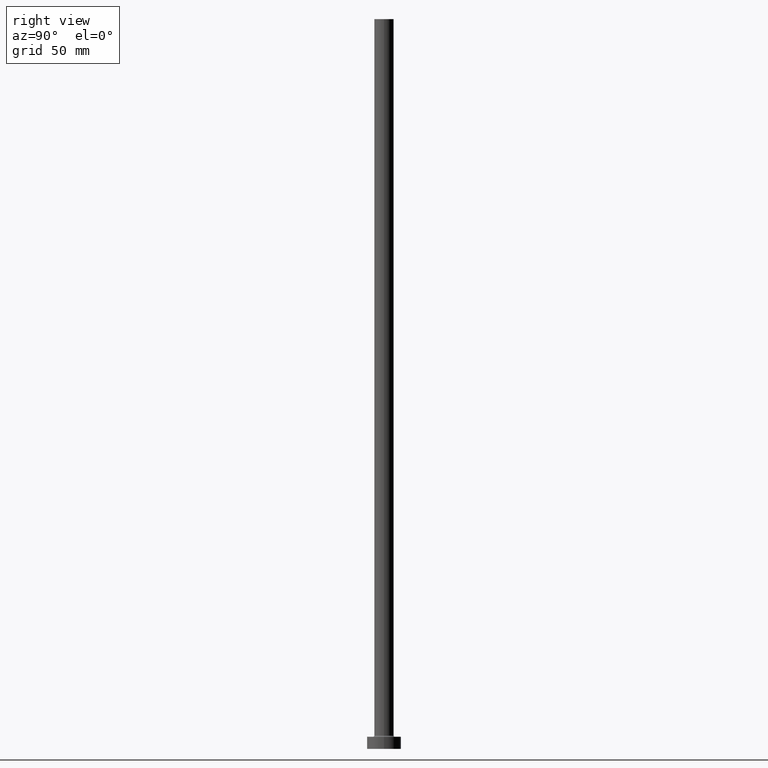
[diagram: clean part render]
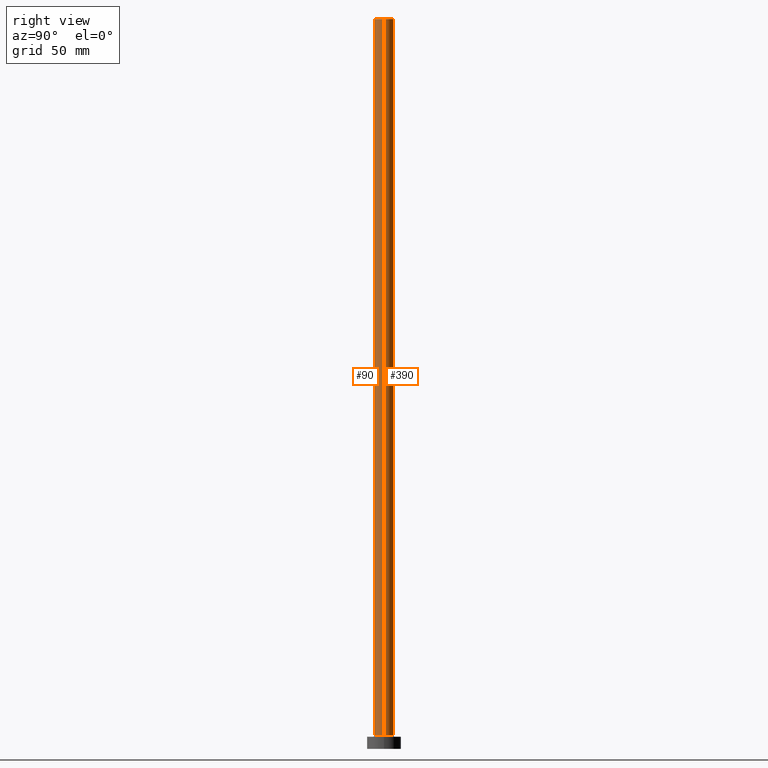
[diagram: same view with one multi-face feature highlighted, each face labeled with its STEP entity id]
A machine part, right view. The highlighted faces form ONE feature: a constant-radius fillet chain: 2 tangent blend faces with common blend radius 4 mm. The faces share edges in the B-rep.
Their STEP definitions:
[1] entity #390 (Cylinder):
#1 = CIRCLE ( 'NONE', #145, 4.000000000000000000 ) ;
#2 = AXIS2_PLACEMENT_3D ( 'NONE', #399, #84, #232 ) ;
#14 = EDGE_CURVE ( 'NONE', #408, #242, #246, .T. ) ;
#29 = CYLINDRICAL_SURFACE ( 'NONE', #2, 4.000000000000000000 ) ;
#84 = DIRECTION ( 'NONE',  ( -0.000000000000000000, -0.000000000000000000, -1.000000000000000000 ) ) ;
#114 = EDGE_CURVE ( 'NONE', #118, #383, #344, .T. ) ;
#118 = VERTEX_POINT ( 'NONE', #238 ) ;
#121 = ORIENTED_EDGE ( 'NONE', *, *, #127, .F. ) ;
#122 = CARTESIAN_POINT ( 'NONE',  ( 4.000000000000000000, 4.898587196589412829E-16, 5.500000000000005329 ) ) ;
#127 = EDGE_CURVE ( 'NONE', #118, #408, #371, .T. ) ;
#133 = DIRECTION ( 'NONE',  ( 1.000000000000000000, 0.000000000000000000, 0.000000000000000000 ) ) ;
#134 = AXIS2_PLACEMENT_3D ( 'NONE', #241, #314, #347 ) ;
#145 = AXIS2_PLACEMENT_3D ( 'NONE', #460, #313, #133 ) ;
#166 = VECTOR ( 'NONE', #216, 1000.000000000000000 ) ;
#216 = DIRECTION ( 'NONE',  ( -0.000000000000000000, -0.000000000000000000, -1.000000000000000000 ) ) ;
#221 = CARTESIAN_POINT ( 'NONE',  ( 4.000000000000000000, 4.898587196589412829E-16, 300.0000000000000000 ) ) ;
#232 = DIRECTION ( 'NONE',  ( -1.000000000000000000, 0.000000000000000000, 0.000000000000000000 ) ) ;
#238 = CARTESIAN_POINT ( 'NONE',  ( 4.000000000000000000, 4.898587196589412829E-16, 300.0000000000000000 ) ) ;
#241 = CARTESIAN_POINT ( 'NONE',  ( 0.000000000000000000, 0.000000000000000000, 300.0000000000000000 ) ) ;
#242 = VERTEX_POINT ( 'NONE', #356 ) ;
#246 = LINE ( 'NONE', #376, #166 ) ;
#299 = EDGE_LOOP ( 'NONE', ( #121, #458, #370, #319 ) ) ;
#313 = DIRECTION ( 'NONE',  ( 0.000000000000000000, 0.000000000000000000, 1.000000000000000000 ) ) ;
#314 = DIRECTION ( 'NONE',  ( 0.000000000000000000, 0.000000000000000000, 1.000000000000000000 ) ) ;
#319 = ORIENTED_EDGE ( 'NONE', *, *, #14, .F. ) ;
#344 = LINE ( 'NONE', #221, #397 ) ;
#347 = DIRECTION ( 'NONE',  ( 1.000000000000000000, 0.000000000000000000, 0.000000000000000000 ) ) ;
#356 = CARTESIAN_POINT ( 'NONE',  ( -4.000000000000000000, 0.000000000000000000, 5.500000000000005329 ) ) ;
#370 = ORIENTED_EDGE ( 'NONE', *, *, #403, .T. ) ;
#371 = CIRCLE ( 'NONE', #134, 4.000000000000000000 ) ;
#376 = CARTESIAN_POINT ( 'NONE',  ( -4.000000000000000000, 0.000000000000000000, 300.0000000000000000 ) ) ;
#383 = VERTEX_POINT ( 'NONE', #122 ) ;
#390 = ADVANCED_FACE ( 'NONE', ( #409 ), #29, .T. ) ;
#397 = VECTOR ( 'NONE', #421, 1000.000000000000000 ) ;
#399 = CARTESIAN_POINT ( 'NONE',  ( 0.000000000000000000, 0.000000000000000000, 300.0000000000000000 ) ) ;
#403 = EDGE_CURVE ( 'NONE', #383, #242, #1, .T. ) ;
#408 = VERTEX_POINT ( 'NONE', #424 ) ;
#409 = FACE_OUTER_BOUND ( 'NONE', #299, .T. ) ;
#421 = DIRECTION ( 'NONE',  ( -0.000000000000000000, -0.000000000000000000, -1.000000000000000000 ) ) ;
#424 = CARTESIAN_POINT ( 'NONE',  ( -4.000000000000000000, 0.000000000000000000, 300.0000000000000000 ) ) ;
#458 = ORIENTED_EDGE ( 'NONE', *, *, #114, .T. ) ;
#460 = CARTESIAN_POINT ( 'NONE',  ( 0.000000000000000000, 0.000000000000000000, 5.500000000000005329 ) ) ;
[2] entity #90 (Cylinder):
#14 = EDGE_CURVE ( 'NONE', #408, #242, #246, .T. ) ;
#18 = AXIS2_PLACEMENT_3D ( 'NONE', #384, #432, #429 ) ;
#31 = ORIENTED_EDGE ( 'NONE', *, *, #153, .T. ) ;
#35 = FACE_OUTER_BOUND ( 'NONE', #91, .T. ) ;
#49 = CIRCLE ( 'NONE', #193, 4.000000000000000000 ) ;
#90 = ADVANCED_FACE ( 'NONE', ( #35 ), #132, .T. ) ;
#91 = EDGE_LOOP ( 'NONE', ( #148, #428, #275, #31 ) ) ;
#94 = DIRECTION ( 'NONE',  ( 0.000000000000000000, 0.000000000000000000, 1.000000000000000000 ) ) ;
#114 = EDGE_CURVE ( 'NONE', #118, #383, #344, .T. ) ;
#118 = VERTEX_POINT ( 'NONE', #238 ) ;
#122 = CARTESIAN_POINT ( 'NONE',  ( 4.000000000000000000, 4.898587196589412829E-16, 5.500000000000005329 ) ) ;
#132 = CYLINDRICAL_SURFACE ( 'NONE', #448, 4.000000000000000000 ) ;
#148 = ORIENTED_EDGE ( 'NONE', *, *, #114, .F. ) ;
#153 = EDGE_CURVE ( 'NONE', #242, #383, #49, .T. ) ;
#166 = VECTOR ( 'NONE', #216, 1000.000000000000000 ) ;
#193 = AXIS2_PLACEMENT_3D ( 'NONE', #417, #94, #342 ) ;
#209 = DIRECTION ( 'NONE',  ( -1.000000000000000000, 0.000000000000000000, 0.000000000000000000 ) ) ;
#216 = DIRECTION ( 'NONE',  ( -0.000000000000000000, -0.000000000000000000, -1.000000000000000000 ) ) ;
#221 = CARTESIAN_POINT ( 'NONE',  ( 4.000000000000000000, 4.898587196589412829E-16, 300.0000000000000000 ) ) ;
#231 = EDGE_CURVE ( 'NONE', #408, #118, #249, .T. ) ;
#238 = CARTESIAN_POINT ( 'NONE',  ( 4.000000000000000000, 4.898587196589412829E-16, 300.0000000000000000 ) ) ;
#242 = VERTEX_POINT ( 'NONE', #356 ) ;
#246 = LINE ( 'NONE', #376, #166 ) ;
#249 = CIRCLE ( 'NONE', #18, 4.000000000000000000 ) ;
#275 = ORIENTED_EDGE ( 'NONE', *, *, #14, .T. ) ;
#279 = DIRECTION ( 'NONE',  ( -0.000000000000000000, -0.000000000000000000, -1.000000000000000000 ) ) ;
#342 = DIRECTION ( 'NONE',  ( 1.000000000000000000, 0.000000000000000000, 0.000000000000000000 ) ) ;
#344 = LINE ( 'NONE', #221, #397 ) ;
#356 = CARTESIAN_POINT ( 'NONE',  ( -4.000000000000000000, 0.000000000000000000, 5.500000000000005329 ) ) ;
#376 = CARTESIAN_POINT ( 'NONE',  ( -4.000000000000000000, 0.000000000000000000, 300.0000000000000000 ) ) ;
#383 = VERTEX_POINT ( 'NONE', #122 ) ;
#384 = CARTESIAN_POINT ( 'NONE',  ( 0.000000000000000000, 0.000000000000000000, 300.0000000000000000 ) ) ;
#397 = VECTOR ( 'NONE', #421, 1000.000000000000000 ) ;
#408 = VERTEX_POINT ( 'NONE', #424 ) ;
#417 = CARTESIAN_POINT ( 'NONE',  ( 0.000000000000000000, 0.000000000000000000, 5.500000000000005329 ) ) ;
#421 = DIRECTION ( 'NONE',  ( -0.000000000000000000, -0.000000000000000000, -1.000000000000000000 ) ) ;
#424 = CARTESIAN_POINT ( 'NONE',  ( -4.000000000000000000, 0.000000000000000000, 300.0000000000000000 ) ) ;
#428 = ORIENTED_EDGE ( 'NONE', *, *, #231, .F. ) ;
#429 = DIRECTION ( 'NONE',  ( 1.000000000000000000, 0.000000000000000000, 0.000000000000000000 ) ) ;
#430 = CARTESIAN_POINT ( 'NONE',  ( 0.000000000000000000, 0.000000000000000000, 300.0000000000000000 ) ) ;
#432 = DIRECTION ( 'NONE',  ( 0.000000000000000000, 0.000000000000000000, 1.000000000000000000 ) ) ;
#448 = AXIS2_PLACEMENT_3D ( 'NONE', #430, #279, #209 ) ;